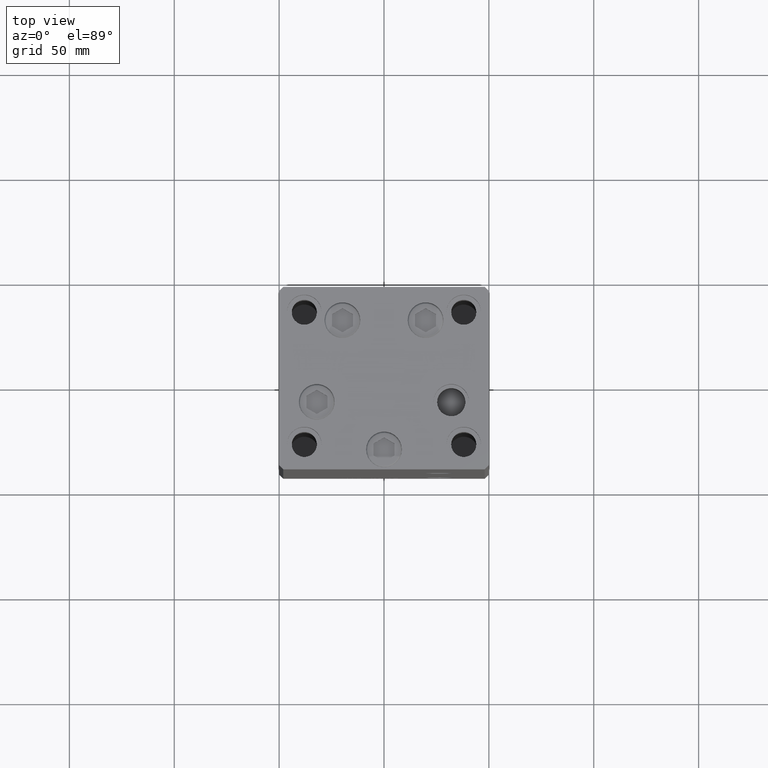
[diagram: clean part render]
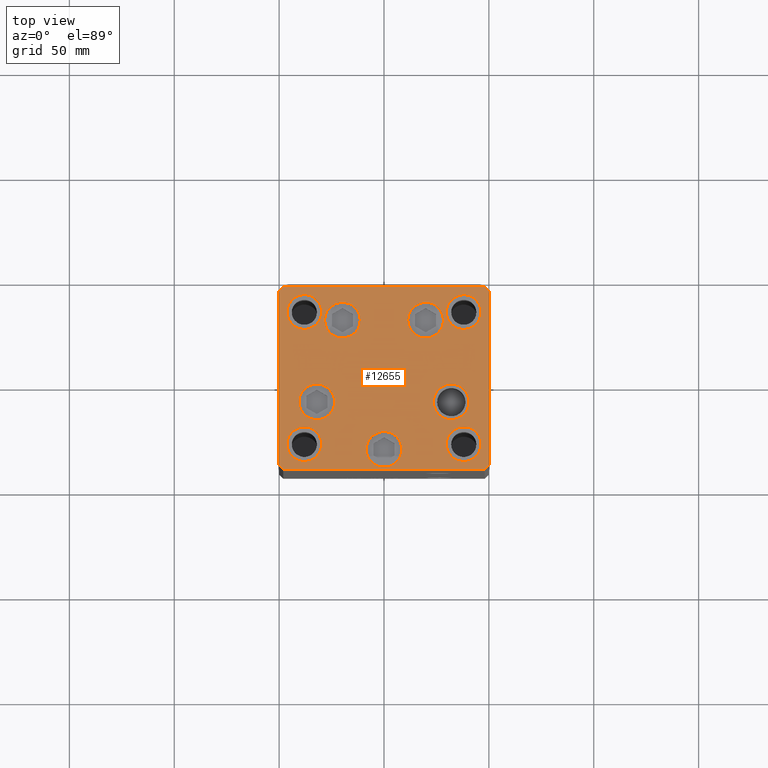
[diagram: same view with one face highlighted and labeled with its STEP entity id]
A machine part, top view. The second image highlights one B-rep face of the part: STEP entity #12655.
In plain terms, the highlighted planar face has unit normal (0, 0, 1).
Its self-contained STEP definition (entity closure, byte-faithful):
#174 = FACE_BOUND ( 'NONE', #22139, .T. ) ;
#303 = CARTESIAN_POINT ( 'NONE',  ( -8.499999999999996447, -34.00000000000000000, 0.000000000000000000 ) ) ;
#959 = VERTEX_POINT ( 'NONE', #36879 ) ;
#1153 = DIRECTION ( 'NONE',  ( 0.000000000000000000, -0.000000000000000000, -1.000000000000000000 ) ) ;
#1417 = DIRECTION ( 'NONE',  ( 1.000000000000000000, 0.000000000000000000, 0.000000000000000000 ) ) ;
#1814 = DIRECTION ( 'NONE',  ( -1.000000000000000000, -3.614007241618350743E-16, 0.000000000000000000 ) ) ;
#1933 = AXIS2_PLACEMENT_3D ( 'NONE', #42101, #22229, #2617 ) ;
#2137 = ORIENTED_EDGE ( 'NONE', *, *, #42948, .F. ) ;
#2214 = EDGE_CURVE ( 'NONE', #29656, #959, #25594, .T. ) ;
#2227 = DIRECTION ( 'NONE',  ( 0.7071067811865474617, -0.7071067811865474617, 0.000000000000000000 ) ) ;
#2617 = DIRECTION ( 'NONE',  ( 1.000000000000000000, 0.000000000000000000, 0.000000000000000000 ) ) ;
#2970 = AXIS2_PLACEMENT_3D ( 'NONE', #43659, #51246, #4174 ) ;
#3869 = VERTEX_POINT ( 'NONE', #32668 ) ;
#3984 = EDGE_CURVE ( 'NONE', #25033, #24967, #18395, .T. ) ;
#4011 = CARTESIAN_POINT ( 'NONE',  ( 29.74999999999999645, -31.49999999999999289, 0.000000000000000000 ) ) ;
#4174 = DIRECTION ( 'NONE',  ( 1.000000000000000000, 0.000000000000000000, 0.000000000000000000 ) ) ;
#4352 = FACE_BOUND ( 'NONE', #14688, .T. ) ;
#4484 = VECTOR ( 'NONE', #12506, 1000.000000000000000 ) ;
#5113 = CARTESIAN_POINT ( 'NONE',  ( 11.32068048781373015, 27.62500000000000000, 0.000000000000000000 ) ) ;
#5234 = VECTOR ( 'NONE', #26003, 1000.000000000000000 ) ;
#5264 = EDGE_CURVE ( 'NONE', #16168, #21136, #23478, .T. ) ;
#5332 = CARTESIAN_POINT ( 'NONE',  ( 19.82068048781373193, 27.62500000000000000, 0.000000000000000000 ) ) ;
#5511 = CARTESIAN_POINT ( 'NONE',  ( 23.55550741379015633, -11.33333333333333037, 0.000000000000000000 ) ) ;
#5540 = CARTESIAN_POINT ( 'NONE',  ( -46.24999999999999289, -31.50000000000000000, 0.000000000000000000 ) ) ;
#5555 = CARTESIAN_POINT ( 'NONE',  ( -19.82068048781373903, 27.62499999999999645, 0.000000000000000000 ) ) ;
#5685 = CIRCLE ( 'NONE', #40750, 8.500000000000000000 ) ;
#5894 = CARTESIAN_POINT ( 'NONE',  ( 4.163799117101000559E-15, -34.00000000000000000, 0.000000000000000000 ) ) ;
#6127 = CARTESIAN_POINT ( 'NONE',  ( -50.00000000000000711, 41.49999999999995026, 0.000000000000000000 ) ) ;
#6651 = LINE ( 'NONE', #38017, #34159 ) ;
#6795 = CARTESIAN_POINT ( 'NONE',  ( 38.00000000000000000, -31.49999999999999289, 0.000000000000000000 ) ) ;
#6826 = VERTEX_POINT ( 'NONE', #6127 ) ;
#6849 = ORIENTED_EDGE ( 'NONE', *, *, #15591, .T. ) ;
#7177 = CARTESIAN_POINT ( 'NONE',  ( 47.99999999999999289, -43.50000000000001421, 0.000000000000000000 ) ) ;
#7249 = AXIS2_PLACEMENT_3D ( 'NONE', #38500, #7628, #42427 ) ;
#7261 = PLANE ( 'NONE',  #50274 ) ;
#7393 = CARTESIAN_POINT ( 'NONE',  ( -38.00000000000000000, 31.50000000000000000, 0.000000000000000000 ) ) ;
#7628 = DIRECTION ( 'NONE',  ( 0.000000000000000000, 0.000000000000000000, 1.000000000000000000 ) ) ;
#7657 = VERTEX_POINT ( 'NONE', #29375 ) ;
#7708 = CIRCLE ( 'NONE', #36086, 8.500000000000000000 ) ;
#7736 = VECTOR ( 'NONE', #21139, 1000.000000000000000 ) ;
#7809 = CIRCLE ( 'NONE', #37029, 8.250000000000000000 ) ;
#8174 = ORIENTED_EDGE ( 'NONE', *, *, #9216, .T. ) ;
#8583 = CIRCLE ( 'NONE', #1933, 8.500000000000000000 ) ;
#8637 = VERTEX_POINT ( 'NONE', #9089 ) ;
#9089 = CARTESIAN_POINT ( 'NONE',  ( 47.99999999999999289, -43.50000000000001421, 0.000000000000000000 ) ) ;
#9157 = EDGE_CURVE ( 'NONE', #17404, #8637, #30951, .T. ) ;
#9216 = EDGE_CURVE ( 'NONE', #47868, #17404, #38548, .T. ) ;
#9267 = DIRECTION ( 'NONE',  ( 1.000000000000000000, 0.000000000000000000, 0.000000000000000000 ) ) ;
#9366 = CARTESIAN_POINT ( 'NONE',  ( -48.00000000000000711, 43.49999999999996447, 0.000000000000000000 ) ) ;
#9568 = DIRECTION ( 'NONE',  ( 1.000000000000000000, 0.000000000000000000, 0.000000000000000000 ) ) ;
#9588 = EDGE_CURVE ( 'NONE', #27350, #31402, #8583, .T. ) ;
#9767 = ORIENTED_EDGE ( 'NONE', *, *, #15176, .F. ) ;
#10018 = CARTESIAN_POINT ( 'NONE',  ( 28.32068048781373193, 27.62500000000000000, 0.000000000000000000 ) ) ;
#10058 = CARTESIAN_POINT ( 'NONE',  ( -47.99999999999999289, -43.50000000000001421, 0.000000000000000000 ) ) ;
#10085 = DIRECTION ( 'NONE',  ( 1.000000000000000000, 0.000000000000000000, 0.000000000000000000 ) ) ;
#10303 = DIRECTION ( 'NONE',  ( -0.7071067811865474617, 0.7071067811865474617, 0.000000000000000000 ) ) ;
#10885 = EDGE_CURVE ( 'NONE', #14747, #37219, #30354, .T. ) ;
#11148 = VERTEX_POINT ( 'NONE', #41723 ) ;
#11388 = CARTESIAN_POINT ( 'NONE',  ( 32.05550741379015278, -11.33333333333333037, 0.000000000000000000 ) ) ;
#11520 = AXIS2_PLACEMENT_3D ( 'NONE', #31243, #16510, #14788 ) ;
#11637 = DIRECTION ( 'NONE',  ( 0.000000000000000000, -0.000000000000000000, -1.000000000000000000 ) ) ;
#11736 = CARTESIAN_POINT ( 'NONE',  ( 38.00000000000000000, -31.49999999999999289, 0.000000000000000000 ) ) ;
#11903 = CIRCLE ( 'NONE', #38644, 8.500000000000000000 ) ;
#12506 = DIRECTION ( 'NONE',  ( -1.003213576468515193E-15, 1.000000000000000000, 0.000000000000000000 ) ) ;
#12655 = ADVANCED_FACE ( 'NONE', ( #44091, #174, #48021, #31294, #19274, #16119, #47252, #40161, #4352, #43572 ), #7261, .T. ) ;
#13815 = CIRCLE ( 'NONE', #2970, 8.499999999999992895 ) ;
#13869 = VERTEX_POINT ( 'NONE', #37263 ) ;
#14245 = ORIENTED_EDGE ( 'NONE', *, *, #33060, .T. ) ;
#14483 = VERTEX_POINT ( 'NONE', #5511 ) ;
#14688 = EDGE_LOOP ( 'NONE', ( #26190, #21306 ) ) ;
#14747 = VERTEX_POINT ( 'NONE', #5113 ) ;
#14788 = DIRECTION ( 'NONE',  ( 1.000000000000000000, 0.000000000000000000, 0.000000000000000000 ) ) ;
#15168 = CARTESIAN_POINT ( 'NONE',  ( 46.25000000000000000, 31.49999999999999289, 0.000000000000000000 ) ) ;
#15176 = EDGE_CURVE ( 'NONE', #3869, #24308, #7809, .T. ) ;
#15475 = EDGE_LOOP ( 'NONE', ( #8174, #36545, #32426, #6849, #27733, #33085, #22792, #40124 ) ) ;
#15591 = EDGE_CURVE ( 'NONE', #38170, #7657, #24014, .T. ) ;
#15649 = EDGE_CURVE ( 'NONE', #24967, #25033, #21206, .T. ) ;
#15916 = CARTESIAN_POINT ( 'NONE',  ( -29.74999999999999289, -31.50000000000000000, 0.000000000000000000 ) ) ;
#16065 = EDGE_LOOP ( 'NONE', ( #2137, #42870 ) ) ;
#16119 = FACE_BOUND ( 'NONE', #24057, .T. ) ;
#16168 = VERTEX_POINT ( 'NONE', #16629 ) ;
#16205 = EDGE_CURVE ( 'NONE', #24308, #3869, #37933, .T. ) ;
#16510 = DIRECTION ( 'NONE',  ( 0.000000000000000000, 0.000000000000000000, 1.000000000000000000 ) ) ;
#16629 = CARTESIAN_POINT ( 'NONE',  ( -28.32068048781373903, 27.62499999999999645, 0.000000000000000000 ) ) ;
#16631 = CARTESIAN_POINT ( 'NONE',  ( 47.99999999999990763, 43.50000000000000000, 0.000000000000000000 ) ) ;
#16837 = EDGE_LOOP ( 'NONE', ( #31012, #9767 ) ) ;
#16846 = ORIENTED_EDGE ( 'NONE', *, *, #27305, .T. ) ;
#17309 = EDGE_CURVE ( 'NONE', #14483, #39655, #43814, .T. ) ;
#17404 = VERTEX_POINT ( 'NONE', #48232 ) ;
#18395 = CIRCLE ( 'NONE', #25044, 8.250000000000000000 ) ;
#18481 = EDGE_CURVE ( 'NONE', #31402, #27350, #40492, .T. ) ;
#19193 = CARTESIAN_POINT ( 'NONE',  ( -50.00000000000000000, -41.50000000000000000, 0.000000000000000000 ) ) ;
#19274 = FACE_BOUND ( 'NONE', #42891, .T. ) ;
#19560 = EDGE_CURVE ( 'NONE', #39655, #14483, #13815, .T. ) ;
#19711 = CARTESIAN_POINT ( 'NONE',  ( 4.163799117101000559E-15, -34.00000000000000000, 0.000000000000000000 ) ) ;
#20236 = DIRECTION ( 'NONE',  ( 1.000000000000000000, 0.000000000000000000, 0.000000000000000000 ) ) ;
#21136 = VERTEX_POINT ( 'NONE', #23043 ) ;
#21139 = DIRECTION ( 'NONE',  ( -0.7071067811865463515, -0.7071067811865487940, 0.000000000000000000 ) ) ;
#21185 = ORIENTED_EDGE ( 'NONE', *, *, #39465, .T. ) ;
#21206 = CIRCLE ( 'NONE', #27873, 8.250000000000000000 ) ;
#21280 = CARTESIAN_POINT ( 'NONE',  ( 38.00000000000000000, 31.49999999999999289, 0.000000000000000000 ) ) ;
#21306 = ORIENTED_EDGE ( 'NONE', *, *, #49546, .F. ) ;
#21705 = DIRECTION ( 'NONE',  ( 1.000000000000000000, 0.000000000000000000, 0.000000000000000000 ) ) ;
#21839 = DIRECTION ( 'NONE',  ( 1.000000000000000000, 0.000000000000000000, 0.000000000000000000 ) ) ;
#22108 = EDGE_CURVE ( 'NONE', #8637, #38170, #51073, .T. ) ;
#22139 = EDGE_LOOP ( 'NONE', ( #28619, #16846 ) ) ;
#22229 = DIRECTION ( 'NONE',  ( 0.000000000000000000, -0.000000000000000000, -1.000000000000000000 ) ) ;
#22253 = CARTESIAN_POINT ( 'NONE',  ( -23.55550741379015278, -11.33333333333333748, 0.000000000000000000 ) ) ;
#22792 = ORIENTED_EDGE ( 'NONE', *, *, #26702, .T. ) ;
#22983 = EDGE_CURVE ( 'NONE', #21136, #16168, #7708, .T. ) ;
#23043 = CARTESIAN_POINT ( 'NONE',  ( -11.32068048781373726, 27.62499999999999645, 0.000000000000000000 ) ) ;
#23478 = CIRCLE ( 'NONE', #39353, 8.500000000000000000 ) ;
#24014 = LINE ( 'NONE', #27946, #4484 ) ;
#24057 = EDGE_LOOP ( 'NONE', ( #43364, #25776 ) ) ;
#24259 = ORIENTED_EDGE ( 'NONE', *, *, #5264, .T. ) ;
#24308 = VERTEX_POINT ( 'NONE', #42287 ) ;
#24362 = CIRCLE ( 'NONE', #37748, 8.250000000000000000 ) ;
#24829 = CIRCLE ( 'NONE', #11520, 8.250000000000000000 ) ;
#24883 = ORIENTED_EDGE ( 'NONE', *, *, #9588, .T. ) ;
#24967 = VERTEX_POINT ( 'NONE', #4011 ) ;
#25033 = VERTEX_POINT ( 'NONE', #30360 ) ;
#25044 = AXIS2_PLACEMENT_3D ( 'NONE', #6795, #46282, #21705 ) ;
#25497 = DIRECTION ( 'NONE',  ( 0.000000000000000000, -0.000000000000000000, -1.000000000000000000 ) ) ;
#25594 = LINE ( 'NONE', #41543, #30838 ) ;
#25776 = ORIENTED_EDGE ( 'NONE', *, *, #15649, .F. ) ;
#25901 = CIRCLE ( 'NONE', #32552, 8.250000000000000000 ) ;
#25958 = CARTESIAN_POINT ( 'NONE',  ( -38.00000000000000000, 31.50000000000000000, 0.000000000000000000 ) ) ;
#26003 = DIRECTION ( 'NONE',  ( 1.000000000000000000, 0.000000000000000000, 0.000000000000000000 ) ) ;
#26181 = AXIS2_PLACEMENT_3D ( 'NONE', #31291, #50907, #27115 ) ;
#26190 = ORIENTED_EDGE ( 'NONE', *, *, #48501, .F. ) ;
#26262 = VERTEX_POINT ( 'NONE', #303 ) ;
#26286 = AXIS2_PLACEMENT_3D ( 'NONE', #11388, #11637, #30746 ) ;
#26326 = CARTESIAN_POINT ( 'NONE',  ( -40.55550741379015278, -11.33333333333333925, 0.000000000000000000 ) ) ;
#26702 = EDGE_CURVE ( 'NONE', #959, #6826, #48848, .T. ) ;
#27115 = DIRECTION ( 'NONE',  ( 1.000000000000000000, 0.000000000000000000, 0.000000000000000000 ) ) ;
#27305 = EDGE_CURVE ( 'NONE', #37219, #14747, #11903, .T. ) ;
#27317 = DIRECTION ( 'NONE',  ( 0.000000000000000000, 0.000000000000000000, 1.000000000000000000 ) ) ;
#27350 = VERTEX_POINT ( 'NONE', #22253 ) ;
#27677 = DIRECTION ( 'NONE',  ( 0.000000000000000000, 0.000000000000000000, 1.000000000000000000 ) ) ;
#27733 = ORIENTED_EDGE ( 'NONE', *, *, #45538, .T. ) ;
#27873 = AXIS2_PLACEMENT_3D ( 'NONE', #11736, #27677, #43642 ) ;
#27946 = CARTESIAN_POINT ( 'NONE',  ( 50.00000000000000000, -41.49999999999999289, 0.000000000000000000 ) ) ;
#28619 = ORIENTED_EDGE ( 'NONE', *, *, #10885, .T. ) ;
#28823 = DIRECTION ( 'NONE',  ( 0.000000000000000000, -0.000000000000000000, -1.000000000000000000 ) ) ;
#29375 = CARTESIAN_POINT ( 'NONE',  ( 49.99999999999992184, 41.49999999999998579, 0.000000000000000000 ) ) ;
#29656 = VERTEX_POINT ( 'NONE', #16631 ) ;
#30354 = CIRCLE ( 'NONE', #26181, 8.500000000000000000 ) ;
#30360 = CARTESIAN_POINT ( 'NONE',  ( 46.25000000000000000, -31.49999999999999289, 0.000000000000000000 ) ) ;
#30465 = CARTESIAN_POINT ( 'NONE',  ( -19.82068048781373903, 27.62499999999999645, 0.000000000000000000 ) ) ;
#30723 = LINE ( 'NONE', #47197, #50304 ) ;
#30746 = DIRECTION ( 'NONE',  ( 1.000000000000000000, 0.000000000000000000, 0.000000000000000000 ) ) ;
#30838 = VECTOR ( 'NONE', #1814, 1000.000000000000000 ) ;
#30951 = LINE ( 'NONE', #10058, #5234 ) ;
#30970 = DIRECTION ( 'NONE',  ( 1.000000000000000000, 0.000000000000000000, 0.000000000000000000 ) ) ;
#31012 = ORIENTED_EDGE ( 'NONE', *, *, #16205, .F. ) ;
#31243 = CARTESIAN_POINT ( 'NONE',  ( -37.99999999999999289, -31.50000000000000000, 0.000000000000000000 ) ) ;
#31291 = CARTESIAN_POINT ( 'NONE',  ( 19.82068048781373193, 27.62500000000000000, 0.000000000000000000 ) ) ;
#31294 = FACE_BOUND ( 'NONE', #50258, .T. ) ;
#31402 = VERTEX_POINT ( 'NONE', #26326 ) ;
#31887 = EDGE_LOOP ( 'NONE', ( #24259, #33001 ) ) ;
#32184 = ORIENTED_EDGE ( 'NONE', *, *, #17309, .T. ) ;
#32426 = ORIENTED_EDGE ( 'NONE', *, *, #22108, .T. ) ;
#32552 = AXIS2_PLACEMENT_3D ( 'NONE', #43017, #27317, #30970 ) ;
#32668 = CARTESIAN_POINT ( 'NONE',  ( -46.25000000000000000, 31.50000000000000000, 0.000000000000000000 ) ) ;
#33001 = ORIENTED_EDGE ( 'NONE', *, *, #22983, .T. ) ;
#33060 = EDGE_CURVE ( 'NONE', #13869, #26262, #34695, .T. ) ;
#33085 = ORIENTED_EDGE ( 'NONE', *, *, #2214, .T. ) ;
#33782 = VERTEX_POINT ( 'NONE', #5540 ) ;
#33850 = CARTESIAN_POINT ( 'NONE',  ( -32.05550741379015278, -11.33333333333333925, 0.000000000000000000 ) ) ;
#34132 = DIRECTION ( 'NONE',  ( 0.000000000000000000, -0.000000000000000000, -1.000000000000000000 ) ) ;
#34159 = VECTOR ( 'NONE', #10303, 1000.000000000000114 ) ;
#34695 = CIRCLE ( 'NONE', #47225, 8.500000000000000000 ) ;
#35111 = CARTESIAN_POINT ( 'NONE',  ( 50.00000000000000000, -41.49999999999999289, 0.000000000000000000 ) ) ;
#35217 = CARTESIAN_POINT ( 'NONE',  ( 0.000000000000000000, 0.000000000000000000, 0.000000000000000000 ) ) ;
#36086 = AXIS2_PLACEMENT_3D ( 'NONE', #5555, #50230, #37444 ) ;
#36191 = DIRECTION ( 'NONE',  ( 0.000000000000000000, 0.000000000000000000, 1.000000000000000000 ) ) ;
#36545 = ORIENTED_EDGE ( 'NONE', *, *, #9157, .T. ) ;
#36879 = CARTESIAN_POINT ( 'NONE',  ( -48.00000000000000711, 43.49999999999996447, 0.000000000000000000 ) ) ;
#37029 = AXIS2_PLACEMENT_3D ( 'NONE', #25958, #41652, #50004 ) ;
#37219 = VERTEX_POINT ( 'NONE', #10018 ) ;
#37263 = CARTESIAN_POINT ( 'NONE',  ( 8.500000000000003553, -34.00000000000000000, 0.000000000000000000 ) ) ;
#37444 = DIRECTION ( 'NONE',  ( 1.000000000000000000, 0.000000000000000000, 0.000000000000000000 ) ) ;
#37748 = AXIS2_PLACEMENT_3D ( 'NONE', #21280, #36191, #20236 ) ;
#37933 = CIRCLE ( 'NONE', #40420, 8.250000000000000000 ) ;
#38017 = CARTESIAN_POINT ( 'NONE',  ( 49.99999999999992184, 41.49999999999998579, 0.000000000000000000 ) ) ;
#38170 = VERTEX_POINT ( 'NONE', #35111 ) ;
#38500 = CARTESIAN_POINT ( 'NONE',  ( -37.99999999999999289, -31.50000000000000000, 0.000000000000000000 ) ) ;
#38548 = LINE ( 'NONE', #19193, #45281 ) ;
#38619 = VERTEX_POINT ( 'NONE', #15168 ) ;
#38644 = AXIS2_PLACEMENT_3D ( 'NONE', #5332, #1153, #1417 ) ;
#39064 = ORIENTED_EDGE ( 'NONE', *, *, #19560, .T. ) ;
#39065 = DIRECTION ( 'NONE',  ( 0.7071067811865463515, 0.7071067811865487940, 0.000000000000000000 ) ) ;
#39285 = DIRECTION ( 'NONE',  ( 0.000000000000000000, 0.000000000000000000, 1.000000000000000000 ) ) ;
#39353 = AXIS2_PLACEMENT_3D ( 'NONE', #30465, #34132, #9568 ) ;
#39465 = EDGE_CURVE ( 'NONE', #26262, #13869, #5685, .T. ) ;
#39655 = VERTEX_POINT ( 'NONE', #44015 ) ;
#39759 = EDGE_CURVE ( 'NONE', #33782, #50702, #43155, .T. ) ;
#40124 = ORIENTED_EDGE ( 'NONE', *, *, #51248, .T. ) ;
#40161 = FACE_BOUND ( 'NONE', #16837, .T. ) ;
#40420 = AXIS2_PLACEMENT_3D ( 'NONE', #7393, #39285, #10085 ) ;
#40492 = CIRCLE ( 'NONE', #47191, 8.500000000000000000 ) ;
#40592 = VECTOR ( 'NONE', #39065, 1000.000000000000000 ) ;
#40750 = AXIS2_PLACEMENT_3D ( 'NONE', #5894, #25497, #21839 ) ;
#41173 = ORIENTED_EDGE ( 'NONE', *, *, #18481, .T. ) ;
#41435 = DIRECTION ( 'NONE',  ( 0.000000000000000000, -0.000000000000000000, -1.000000000000000000 ) ) ;
#41543 = CARTESIAN_POINT ( 'NONE',  ( 47.99999999999990763, 43.50000000000000000, 0.000000000000000000 ) ) ;
#41652 = DIRECTION ( 'NONE',  ( 0.000000000000000000, 0.000000000000000000, 1.000000000000000000 ) ) ;
#41723 = CARTESIAN_POINT ( 'NONE',  ( 29.74999999999999645, 31.49999999999999289, 0.000000000000000000 ) ) ;
#42101 = CARTESIAN_POINT ( 'NONE',  ( -32.05550741379015278, -11.33333333333333925, 0.000000000000000000 ) ) ;
#42287 = CARTESIAN_POINT ( 'NONE',  ( -29.75000000000000000, 31.50000000000000000, 0.000000000000000000 ) ) ;
#42427 = DIRECTION ( 'NONE',  ( 1.000000000000000000, 0.000000000000000000, 0.000000000000000000 ) ) ;
#42870 = ORIENTED_EDGE ( 'NONE', *, *, #39759, .F. ) ;
#42891 = EDGE_LOOP ( 'NONE', ( #41173, #24883 ) ) ;
#42948 = EDGE_CURVE ( 'NONE', #50702, #33782, #24829, .T. ) ;
#43017 = CARTESIAN_POINT ( 'NONE',  ( 38.00000000000000000, 31.49999999999999289, 0.000000000000000000 ) ) ;
#43155 = CIRCLE ( 'NONE', #7249, 8.250000000000000000 ) ;
#43364 = ORIENTED_EDGE ( 'NONE', *, *, #3984, .F. ) ;
#43572 = FACE_OUTER_BOUND ( 'NONE', #15475, .T. ) ;
#43642 = DIRECTION ( 'NONE',  ( 1.000000000000000000, 0.000000000000000000, 0.000000000000000000 ) ) ;
#43659 = CARTESIAN_POINT ( 'NONE',  ( 32.05550741379015278, -11.33333333333333037, 0.000000000000000000 ) ) ;
#43761 = DIRECTION ( 'NONE',  ( 1.000000000000000000, 0.000000000000000000, 0.000000000000000000 ) ) ;
#43814 = CIRCLE ( 'NONE', #26286, 8.499999999999992895 ) ;
#44015 = CARTESIAN_POINT ( 'NONE',  ( 40.55550741379014568, -11.33333333333332860, 0.000000000000000000 ) ) ;
#44091 = FACE_BOUND ( 'NONE', #31887, .T. ) ;
#45281 = VECTOR ( 'NONE', #2227, 1000.000000000000114 ) ;
#45538 = EDGE_CURVE ( 'NONE', #7657, #29656, #6651, .T. ) ;
#46282 = DIRECTION ( 'NONE',  ( 0.000000000000000000, 0.000000000000000000, 1.000000000000000000 ) ) ;
#46685 = DIRECTION ( 'NONE',  ( 8.360113137237628665E-17, -1.000000000000000000, 0.000000000000000000 ) ) ;
#46994 = DIRECTION ( 'NONE',  ( -0.000000000000000000, 0.000000000000000000, 1.000000000000000000 ) ) ;
#47191 = AXIS2_PLACEMENT_3D ( 'NONE', #33850, #41435, #9267 ) ;
#47197 = CARTESIAN_POINT ( 'NONE',  ( -50.00000000000000711, 41.49999999999995026, 0.000000000000000000 ) ) ;
#47198 = EDGE_LOOP ( 'NONE', ( #32184, #39064 ) ) ;
#47225 = AXIS2_PLACEMENT_3D ( 'NONE', #19711, #28823, #43761 ) ;
#47252 = FACE_BOUND ( 'NONE', #16065, .T. ) ;
#47753 = DIRECTION ( 'NONE',  ( 1.000000000000000000, 0.000000000000000000, 0.000000000000000000 ) ) ;
#47868 = VERTEX_POINT ( 'NONE', #51466 ) ;
#48021 = FACE_BOUND ( 'NONE', #47198, .T. ) ;
#48232 = CARTESIAN_POINT ( 'NONE',  ( -47.99999999999999289, -43.50000000000001421, 0.000000000000000000 ) ) ;
#48501 = EDGE_CURVE ( 'NONE', #38619, #11148, #25901, .T. ) ;
#48848 = LINE ( 'NONE', #9366, #7736 ) ;
#49546 = EDGE_CURVE ( 'NONE', #11148, #38619, #24362, .T. ) ;
#50004 = DIRECTION ( 'NONE',  ( 1.000000000000000000, 0.000000000000000000, 0.000000000000000000 ) ) ;
#50230 = DIRECTION ( 'NONE',  ( 0.000000000000000000, -0.000000000000000000, -1.000000000000000000 ) ) ;
#50258 = EDGE_LOOP ( 'NONE', ( #21185, #14245 ) ) ;
#50274 = AXIS2_PLACEMENT_3D ( 'NONE', #35217, #46994, #47753 ) ;
#50304 = VECTOR ( 'NONE', #46685, 1000.000000000000000 ) ;
#50702 = VERTEX_POINT ( 'NONE', #15916 ) ;
#50907 = DIRECTION ( 'NONE',  ( 0.000000000000000000, -0.000000000000000000, -1.000000000000000000 ) ) ;
#51073 = LINE ( 'NONE', #7177, #40592 ) ;
#51246 = DIRECTION ( 'NONE',  ( 0.000000000000000000, -0.000000000000000000, -1.000000000000000000 ) ) ;
#51248 = EDGE_CURVE ( 'NONE', #6826, #47868, #30723, .T. ) ;
#51466 = CARTESIAN_POINT ( 'NONE',  ( -50.00000000000000000, -41.50000000000000000, 0.000000000000000000 ) ) ;